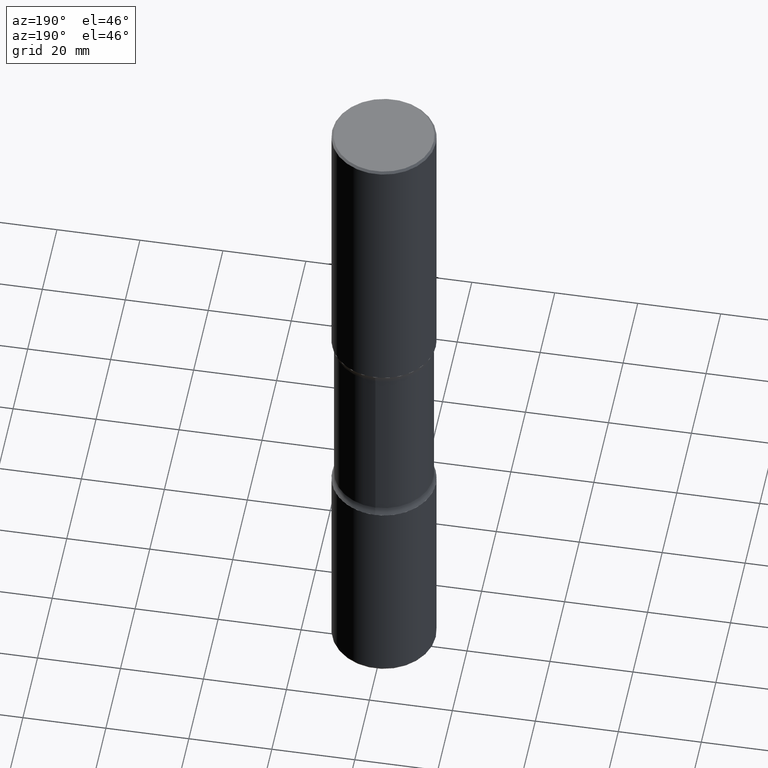
[diagram: clean part render]
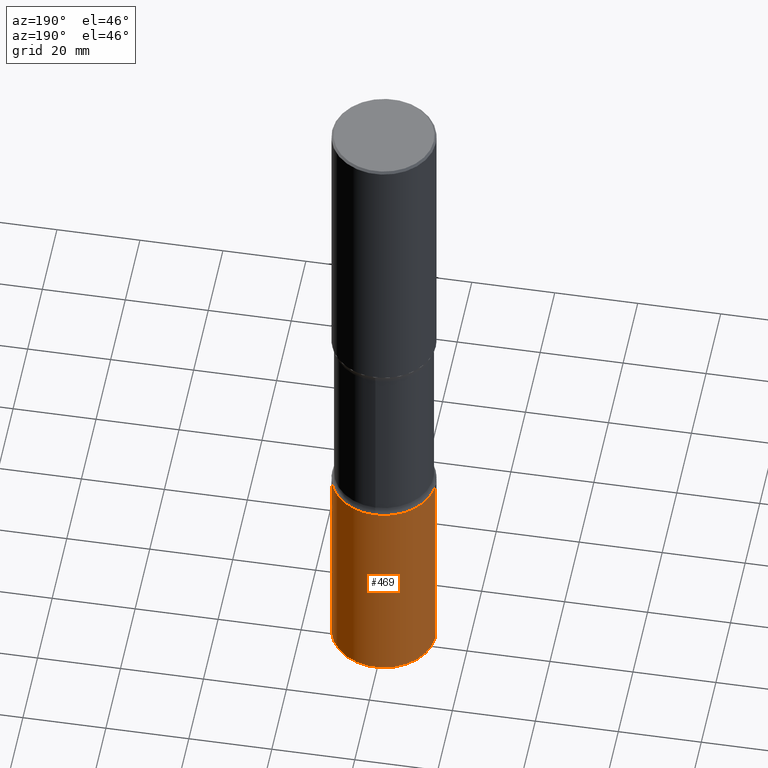
[diagram: same view with one face highlighted and labeled with its STEP entity id]
A machine part, auxiliary view. The second image highlights one B-rep face of the part: STEP entity #469.
In plain terms, the highlighted cylindrical surface (partial cylindrical patch) has radius 12.5006 mm, axis along (-0, 0, 1).
Its self-contained STEP definition (entity closure, byte-faithful):
#20 = VERTEX_POINT ( 'NONE', #547 ) ;
#30 = DIRECTION ( 'NONE',  ( -2.445468806185136597E-29, 3.491481338843145583E-15, 1.000000000000000000 ) ) ;
#32 = ORIENTED_EDGE ( 'NONE', *, *, #235, .T. ) ;
#36 = AXIS2_PLACEMENT_3D ( 'NONE', #154, #195, #188 ) ;
#68 = DIRECTION ( 'NONE',  ( -2.445468806185136877E-29, 3.491481338843145188E-15, 1.000000000000000000 ) ) ;
#95 = ORIENTED_EDGE ( 'NONE', *, *, #487, .F. ) ;
#120 = VERTEX_POINT ( 'NONE', #326 ) ;
#121 = CARTESIAN_POINT ( 'NONE',  ( 0.000000000000000000, 0.000000000000000000, 0.000000000000000000 ) ) ;
#139 = VECTOR ( 'NONE', #68, 39.37007874015748143 ) ;
#142 = CARTESIAN_POINT ( 'NONE',  ( 0.4921500000000002539, -1.951947557293647774E-14, -4.606299999999999173 ) ) ;
#143 = DIRECTION ( 'NONE',  ( -2.445468806185136597E-29, 3.491481338843145583E-15, 1.000000000000000000 ) ) ;
#154 = CARTESIAN_POINT ( 'NONE',  ( 1.627092670195280394E-28, -2.323057108799286859E-14, -6.653499999999999304 ) ) ;
#164 = VERTEX_POINT ( 'NONE', #222 ) ;
#187 = DIRECTION ( 'NONE',  ( -2.445468806185136877E-29, 3.491481338843145188E-15, 1.000000000000000000 ) ) ;
#188 = DIRECTION ( 'NONE',  ( 1.000000000000000000, -6.982962677686262766E-15, 0.000000000000000000 ) ) ;
#195 = DIRECTION ( 'NONE',  ( -2.445468806185136597E-29, 3.491481338843145583E-15, 1.000000000000000000 ) ) ;
#200 = VERTEX_POINT ( 'NONE', #142 ) ;
#208 = CARTESIAN_POINT ( 'NONE',  ( 0.4921500000000002539, -3.436665081823297749E-15, 2.399810400207971004E-29 ) ) ;
#222 = CARTESIAN_POINT ( 'NONE',  ( 0.4921500000000003650, -2.666723616981616910E-14, -6.653499999999999304 ) ) ;
#223 = VECTOR ( 'NONE', #187, 39.37007874015748143 ) ;
#235 = EDGE_CURVE ( 'NONE', #120, #20, #433, .T. ) ;
#237 = EDGE_CURVE ( 'NONE', #200, #20, #473, .T. ) ;
#252 = LINE ( 'NONE', #208, #139 ) ;
#259 = AXIS2_PLACEMENT_3D ( 'NONE', #121, #30, #499 ) ;
#275 = FACE_OUTER_BOUND ( 'NONE', #427, .T. ) ;
#278 = ORIENTED_EDGE ( 'NONE', *, *, #333, .T. ) ;
#326 = CARTESIAN_POINT ( 'NONE',  ( -0.4921500000000003650, -1.973363501394953490E-14, -6.653499999999999304 ) ) ;
#333 = EDGE_CURVE ( 'NONE', #164, #120, #374, .T. ) ;
#344 = CARTESIAN_POINT ( 'NONE',  ( 1.126456296193059450E-28, -1.608281049111318039E-14, -4.606299999999999173 ) ) ;
#360 = AXIS2_PLACEMENT_3D ( 'NONE', #344, #143, #434 ) ;
#374 = CIRCLE ( 'NONE', #36, 0.4921500000000001984 ) ;
#423 = ORIENTED_EDGE ( 'NONE', *, *, #237, .F. ) ;
#427 = EDGE_LOOP ( 'NONE', ( #278, #32, #423, #95 ) ) ;
#433 = LINE ( 'NONE', #468, #223 ) ;
#434 = DIRECTION ( 'NONE',  ( 1.000000000000000000, -6.982962677686270655E-15, 0.000000000000000000 ) ) ;
#439 = CYLINDRICAL_SURFACE ( 'NONE', #259, 0.4921500000000002539 ) ;
#468 = CARTESIAN_POINT ( 'NONE',  ( -0.4921500000000002539, 3.496936074043334869E-15, -2.420853904668952910E-29 ) ) ;
#469 = ADVANCED_FACE ( 'NONE', ( #275 ), #439, .T. ) ;
#473 = CIRCLE ( 'NONE', #360, 0.4921500000000002539 ) ;
#487 = EDGE_CURVE ( 'NONE', #164, #200, #252, .T. ) ;
#499 = DIRECTION ( 'NONE',  ( 1.000000000000000000, -6.982962677686266711E-15, 4.876176775795935793E-29 ) ) ;
#547 = CARTESIAN_POINT ( 'NONE',  ( -0.4921500000000002539, -1.615975471550968765E-14, -4.606299999999999173 ) ) ;